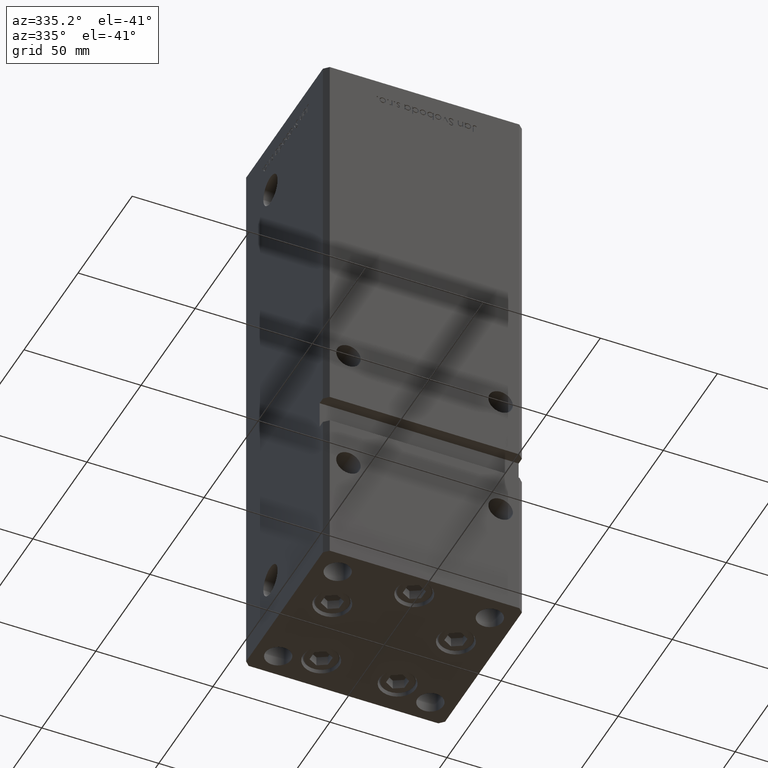
[diagram: clean part render]
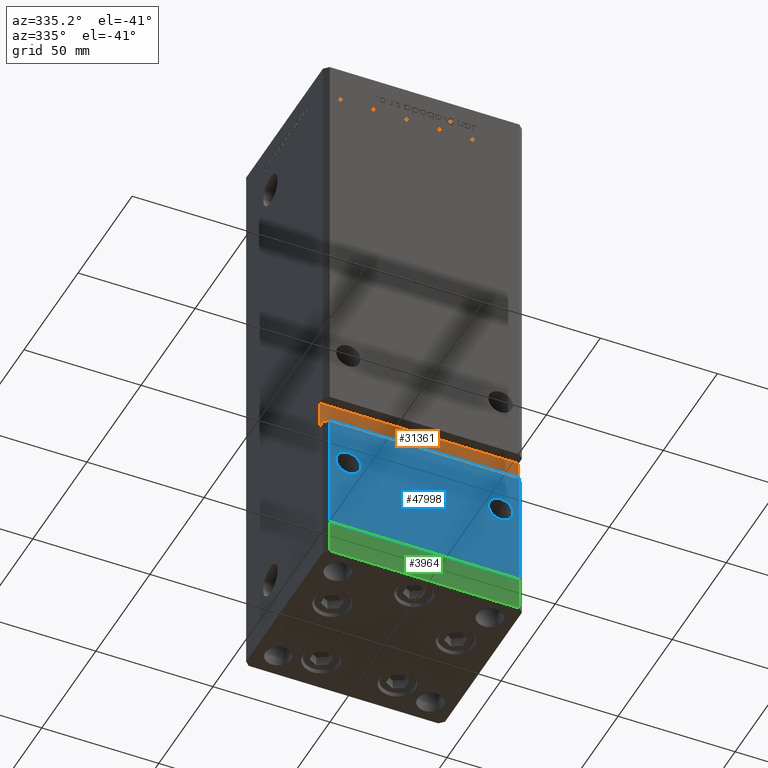
[diagram: same view with three faces highlighted in distinct colors, each labeled with its STEP entity id]
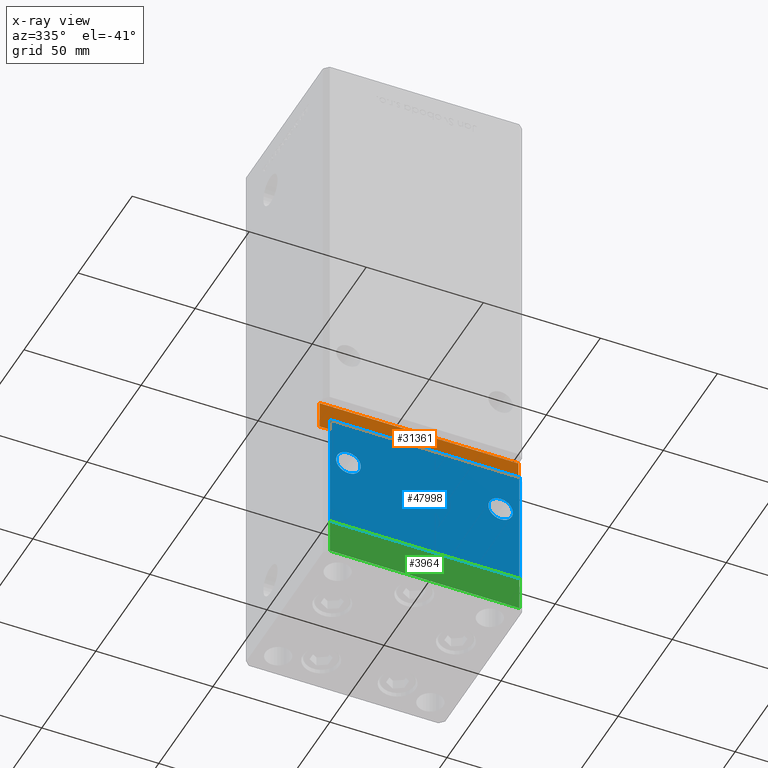
[diagram: x-ray of the same camera — body ghosted, the three highlighted faces saturated]
A machine part, auxiliary view with three faces highlighted in distinct colors.
The next image is the same camera in x-ray (body ghosted, the three faces saturated) — at least one of them is partly hidden behind the body in this view.
Their STEP definitions:

[orange] entity #31361 — the highlighted planar face has unit normal (0, -1, 0).
#280 = DIRECTION ( 'NONE',  ( -1.000000000000000000, -0.000000000000000000, -0.000000000000000000 ) ) ;
#643 = CARTESIAN_POINT ( 'NONE',  ( -42.49999999999997158, -32.50000000000000711, 64.00000000000002842 ) ) ;
#1408 = ORIENTED_EDGE ( 'NONE', *, *, #47503, .T. ) ;
#1414 = DIRECTION ( 'NONE',  ( 0.000000000000000000, -0.000000000000000000, -1.000000000000000000 ) ) ;
#1760 = CARTESIAN_POINT ( 'NONE',  ( -42.49999999999997158, -32.50000000000000711, 64.00000000000002842 ) ) ;
#4115 = VERTEX_POINT ( 'NONE', #24476 ) ;
#6539 = DIRECTION ( 'NONE',  ( 1.000000000000000000, 0.000000000000000000, 0.000000000000000000 ) ) ;
#10062 = EDGE_CURVE ( 'NONE', #52933, #4115, #28759, .T. ) ;
#12533 = VECTOR ( 'NONE', #6539, 1000.000000000000000 ) ;
#16120 = CARTESIAN_POINT ( 'NONE',  ( 42.49999999999999289, -32.50000000000000711, 64.00000000000002842 ) ) ;
#17529 = PLANE ( 'NONE',  #32927 ) ;
#18165 = VERTEX_POINT ( 'NONE', #20466 ) ;
#20108 = VERTEX_POINT ( 'NONE', #44892 ) ;
#20466 = CARTESIAN_POINT ( 'NONE',  ( -42.49999999999998579, -32.50000000000000711, 52.00000000000002132 ) ) ;
#21046 = LINE ( 'NONE', #643, #38861 ) ;
#22159 = DIRECTION ( 'NONE',  ( -1.734723475976805517E-15, 0.000000000000000000, -1.000000000000000000 ) ) ;
#22592 = ORIENTED_EDGE ( 'NONE', *, *, #29542, .T. ) ;
#24476 = CARTESIAN_POINT ( 'NONE',  ( 42.49999999999999289, -32.50000000000000711, 64.00000000000002842 ) ) ;
#28759 = LINE ( 'NONE', #16120, #50660 ) ;
#29372 = CARTESIAN_POINT ( 'NONE',  ( 0.000000000000000000, -32.50000000000000711, 0.000000000000000000 ) ) ;
#29542 = EDGE_CURVE ( 'NONE', #4115, #20108, #21046, .T. ) ;
#30707 = LINE ( 'NONE', #47920, #12533 ) ;
#31361 = ADVANCED_FACE ( 'NONE', ( #42262 ), #17529, .T. ) ;
#32927 = AXIS2_PLACEMENT_3D ( 'NONE', #29372, #50600, #1414 ) ;
#37528 = EDGE_CURVE ( 'NONE', #18165, #52933, #30707, .T. ) ;
#38846 = LINE ( 'NONE', #1760, #45292 ) ;
#38861 = VECTOR ( 'NONE', #280, 1000.000000000000000 ) ;
#41894 = ORIENTED_EDGE ( 'NONE', *, *, #10062, .T. ) ;
#42262 = FACE_OUTER_BOUND ( 'NONE', #48324, .T. ) ;
#44892 = CARTESIAN_POINT ( 'NONE',  ( -42.49999999999997158, -32.50000000000000711, 64.00000000000002842 ) ) ;
#45292 = VECTOR ( 'NONE', #22159, 1000.000000000000000 ) ;
#46468 = ORIENTED_EDGE ( 'NONE', *, *, #37528, .T. ) ;
#47503 = EDGE_CURVE ( 'NONE', #20108, #18165, #38846, .T. ) ;
#47920 = CARTESIAN_POINT ( 'NONE',  ( -42.49999999999998579, -32.50000000000000711, 52.00000000000002132 ) ) ;
#48323 = CARTESIAN_POINT ( 'NONE',  ( 42.49999999999998579, -32.50000000000000000, 52.00000000000002132 ) ) ;
#48324 = EDGE_LOOP ( 'NONE', ( #41894, #22592, #1408, #46468 ) ) ;
#50600 = DIRECTION ( 'NONE',  ( 0.000000000000000000, -1.000000000000000000, 0.000000000000000000 ) ) ;
#50660 = VECTOR ( 'NONE', #52969, 1000.000000000000000 ) ;
#52933 = VERTEX_POINT ( 'NONE', #48323 ) ;
#52969 = DIRECTION ( 'NONE',  ( -0.000000000000000000, -0.000000000000000000, 1.000000000000000000 ) ) ;

[blue] entity #47998 — the highlighted planar face has unit normal (0, 1, 0).
#294 = DIRECTION ( 'NONE',  ( 1.000000000000000000, 0.000000000000000000, 0.000000000000000000 ) ) ;
#385 = LINE ( 'NONE', #37460, #1583 ) ;
#823 = AXIS2_PLACEMENT_3D ( 'NONE', #16291, #28136, #41572 ) ;
#1506 = AXIS2_PLACEMENT_3D ( 'NONE', #21370, #29443, #33995 ) ;
#1583 = VECTOR ( 'NONE', #20251, 1000.000000000000000 ) ;
#2760 = FACE_BOUND ( 'NONE', #48376, .T. ) ;
#3035 = CARTESIAN_POINT ( 'NONE',  ( -40.49999999999998579, -37.50000000000000711, 218.5000000000000000 ) ) ;
#3520 = VERTEX_POINT ( 'NONE', #27320 ) ;
#3580 = DIRECTION ( 'NONE',  ( 0.000000000000000000, 1.000000000000000000, 0.000000000000000000 ) ) ;
#5051 = ORIENTED_EDGE ( 'NONE', *, *, #47386, .T. ) ;
#5578 = EDGE_CURVE ( 'NONE', #24733, #6236, #35916, .T. ) ;
#6236 = VERTEX_POINT ( 'NONE', #26536 ) ;
#6674 = CARTESIAN_POINT ( 'NONE',  ( 32.50000000000000000, -37.50000000000000711, 38.24999999999998579 ) ) ;
#6675 = EDGE_LOOP ( 'NONE', ( #17034, #22670, #35157, #23114 ) ) ;
#7464 = EDGE_CURVE ( 'NONE', #21424, #35253, #50574, .T. ) ;
#7849 = DIRECTION ( 'NONE',  ( 0.000000000000000000, 1.000000000000000000, 0.000000000000000000 ) ) ;
#9232 = CIRCLE ( 'NONE', #19501, 5.249999999999997335 ) ;
#10125 = LINE ( 'NONE', #31330, #32674 ) ;
#10160 = ORIENTED_EDGE ( 'NONE', *, *, #41699, .T. ) ;
#11706 = EDGE_LOOP ( 'NONE', ( #17486, #5051 ) ) ;
#13117 = VECTOR ( 'NONE', #20445, 1000.000000000000000 ) ;
#13698 = CARTESIAN_POINT ( 'NONE',  ( -32.50000000000000000, -37.50000000000000711, 38.24999999999999289 ) ) ;
#13783 = EDGE_CURVE ( 'NONE', #46427, #24529, #10125, .T. ) ;
#15746 = CARTESIAN_POINT ( 'NONE',  ( -40.49999999999998579, -37.50000000000000711, 52.00000000000002132 ) ) ;
#16291 = CARTESIAN_POINT ( 'NONE',  ( -32.50000000000000000, -37.50000000000000711, 32.99999999999999289 ) ) ;
#17034 = ORIENTED_EDGE ( 'NONE', *, *, #22770, .F. ) ;
#17486 = ORIENTED_EDGE ( 'NONE', *, *, #5578, .T. ) ;
#18846 = ORIENTED_EDGE ( 'NONE', *, *, #7464, .T. ) ;
#19501 = AXIS2_PLACEMENT_3D ( 'NONE', #26638, #43046, #38753 ) ;
#20203 = DIRECTION ( 'NONE',  ( 0.000000000000000000, 0.000000000000000000, 1.000000000000000000 ) ) ;
#20251 = DIRECTION ( 'NONE',  ( 1.000000000000000000, 0.000000000000000000, 0.000000000000000000 ) ) ;
#20445 = DIRECTION ( 'NONE',  ( -0.000000000000000000, -0.000000000000000000, -1.000000000000000000 ) ) ;
#20818 = EDGE_CURVE ( 'NONE', #24529, #35415, #24186, .T. ) ;
#21370 = CARTESIAN_POINT ( 'NONE',  ( 32.50000000000000000, -37.50000000000000711, 32.99999999999999289 ) ) ;
#21424 = VERTEX_POINT ( 'NONE', #36631 ) ;
#22670 = ORIENTED_EDGE ( 'NONE', *, *, #49208, .F. ) ;
#22770 = EDGE_CURVE ( 'NONE', #3520, #35415, #36579, .T. ) ;
#23114 = ORIENTED_EDGE ( 'NONE', *, *, #20818, .T. ) ;
#24186 = LINE ( 'NONE', #37101, #24192 ) ;
#24192 = VECTOR ( 'NONE', #294, 1000.000000000000000 ) ;
#24529 = VERTEX_POINT ( 'NONE', #47654 ) ;
#24733 = VERTEX_POINT ( 'NONE', #6674 ) ;
#26131 = FACE_OUTER_BOUND ( 'NONE', #6675, .T. ) ;
#26504 = DIRECTION ( 'NONE',  ( -0.000000000000000000, -0.000000000000000000, -1.000000000000000000 ) ) ;
#26536 = CARTESIAN_POINT ( 'NONE',  ( 32.50000000000000000, -37.50000000000000711, 27.75000000000000355 ) ) ;
#26638 = CARTESIAN_POINT ( 'NONE',  ( -32.50000000000000000, -37.50000000000000711, 32.99999999999999289 ) ) ;
#27320 = CARTESIAN_POINT ( 'NONE',  ( 40.49999999999998579, -37.50000000000000711, 52.00000000000002132 ) ) ;
#28136 = DIRECTION ( 'NONE',  ( 0.000000000000000000, 1.000000000000000000, 0.000000000000000000 ) ) ;
#28707 = CARTESIAN_POINT ( 'NONE',  ( 40.49999999999998579, -37.50000000000000711, 0.000000000000000000 ) ) ;
#29443 = DIRECTION ( 'NONE',  ( 0.000000000000000000, 1.000000000000000000, 0.000000000000000000 ) ) ;
#31330 = CARTESIAN_POINT ( 'NONE',  ( -40.49999999999998579, -37.50000000000000711, 218.5000000000000000 ) ) ;
#32674 = VECTOR ( 'NONE', #26504, 1000.000000000000000 ) ;
#33995 = DIRECTION ( 'NONE',  ( 0.000000000000000000, 0.000000000000000000, 1.000000000000000000 ) ) ;
#34095 = CIRCLE ( 'NONE', #1506, 5.249999999999991118 ) ;
#35157 = ORIENTED_EDGE ( 'NONE', *, *, #13783, .T. ) ;
#35253 = VERTEX_POINT ( 'NONE', #13698 ) ;
#35415 = VERTEX_POINT ( 'NONE', #28707 ) ;
#35807 = CARTESIAN_POINT ( 'NONE',  ( 32.50000000000000000, -37.50000000000000711, 32.99999999999999289 ) ) ;
#35916 = CIRCLE ( 'NONE', #41065, 5.249999999999991118 ) ;
#36068 = DIRECTION ( 'NONE',  ( 0.000000000000000000, -0.000000000000000000, 1.000000000000000000 ) ) ;
#36579 = LINE ( 'NONE', #48952, #13117 ) ;
#36631 = CARTESIAN_POINT ( 'NONE',  ( -32.50000000000000000, -37.50000000000000711, 27.74999999999999645 ) ) ;
#37101 = CARTESIAN_POINT ( 'NONE',  ( -40.49999999999998579, -37.50000000000000711, 0.000000000000000000 ) ) ;
#37460 = CARTESIAN_POINT ( 'NONE',  ( -42.49999999999998579, -37.50000000000000711, 52.00000000000002132 ) ) ;
#38753 = DIRECTION ( 'NONE',  ( 0.000000000000000000, 0.000000000000000000, 1.000000000000000000 ) ) ;
#41065 = AXIS2_PLACEMENT_3D ( 'NONE', #35807, #3580, #20203 ) ;
#41572 = DIRECTION ( 'NONE',  ( 0.000000000000000000, 0.000000000000000000, 1.000000000000000000 ) ) ;
#41699 = EDGE_CURVE ( 'NONE', #35253, #21424, #9232, .T. ) ;
#43046 = DIRECTION ( 'NONE',  ( 0.000000000000000000, 1.000000000000000000, 0.000000000000000000 ) ) ;
#43875 = PLANE ( 'NONE',  #49628 ) ;
#46427 = VERTEX_POINT ( 'NONE', #15746 ) ;
#46576 = FACE_BOUND ( 'NONE', #11706, .T. ) ;
#47386 = EDGE_CURVE ( 'NONE', #6236, #24733, #34095, .T. ) ;
#47654 = CARTESIAN_POINT ( 'NONE',  ( -40.49999999999998579, -37.50000000000000711, 0.000000000000000000 ) ) ;
#47998 = ADVANCED_FACE ( 'NONE', ( #2760, #46576, #26131 ), #43875, .F. ) ;
#48376 = EDGE_LOOP ( 'NONE', ( #10160, #18846 ) ) ;
#48952 = CARTESIAN_POINT ( 'NONE',  ( 40.49999999999998579, -37.50000000000000711, 218.5000000000000000 ) ) ;
#49208 = EDGE_CURVE ( 'NONE', #46427, #3520, #385, .T. ) ;
#49628 = AXIS2_PLACEMENT_3D ( 'NONE', #3035, #7849, #36068 ) ;
#50574 = CIRCLE ( 'NONE', #823, 5.249999999999997335 ) ;

[green] entity #3964 — the highlighted planar face has unit normal (0, -1, -0).
#323 = EDGE_CURVE ( 'NONE', #22299, #11959, #24246, .T. ) ;
#2582 = ORIENTED_EDGE ( 'NONE', *, *, #28472, .T. ) ;
#3964 = ADVANCED_FACE ( 'NONE', ( #23416 ), #36325, .T. ) ;
#5259 = CARTESIAN_POINT ( 'NONE',  ( -40.49999999999999289, -37.50000000000002132, 0.000000000000000000 ) ) ;
#6569 = LINE ( 'NONE', #6837, #44920 ) ;
#6594 = EDGE_LOOP ( 'NONE', ( #21593, #13512, #34020, #2582 ) ) ;
#6837 = CARTESIAN_POINT ( 'NONE',  ( -40.49999999999999289, -37.50000000000002132, -15.00000000000000000 ) ) ;
#10148 = VECTOR ( 'NONE', #17505, 1000.000000000000000 ) ;
#11959 = VERTEX_POINT ( 'NONE', #34389 ) ;
#13512 = ORIENTED_EDGE ( 'NONE', *, *, #33167, .F. ) ;
#16269 = CARTESIAN_POINT ( 'NONE',  ( -40.49999999999999289, -37.50000000000002132, -15.00000000000000000 ) ) ;
#17505 = DIRECTION ( 'NONE',  ( 1.000000000000000000, 1.713307136767217096E-16, 0.000000000000000000 ) ) ;
#20405 = AXIS2_PLACEMENT_3D ( 'NONE', #48443, #27995, #43596 ) ;
#21593 = ORIENTED_EDGE ( 'NONE', *, *, #323, .F. ) ;
#22299 = VERTEX_POINT ( 'NONE', #5259 ) ;
#23416 = FACE_OUTER_BOUND ( 'NONE', #6594, .T. ) ;
#23865 = CARTESIAN_POINT ( 'NONE',  ( 40.50000000000000000, -37.50000000000000711, -15.00000000000000000 ) ) ;
#24246 = LINE ( 'NONE', #37940, #10148 ) ;
#24267 = CARTESIAN_POINT ( 'NONE',  ( 40.50000000000000000, -37.50000000000000711, -15.00000000000000000 ) ) ;
#26974 = DIRECTION ( 'NONE',  ( 1.000000000000000000, 1.713307136767217096E-16, 0.000000000000000000 ) ) ;
#27995 = DIRECTION ( 'NONE',  ( 1.713307136767217096E-16, -1.000000000000000000, 0.000000000000000000 ) ) ;
#28472 = EDGE_CURVE ( 'NONE', #45022, #11959, #36118, .T. ) ;
#30366 = EDGE_CURVE ( 'NONE', #50270, #45022, #6569, .T. ) ;
#32660 = DIRECTION ( 'NONE',  ( 0.000000000000000000, 0.000000000000000000, 1.000000000000000000 ) ) ;
#33167 = EDGE_CURVE ( 'NONE', #50270, #22299, #36984, .T. ) ;
#34020 = ORIENTED_EDGE ( 'NONE', *, *, #30366, .T. ) ;
#34389 = CARTESIAN_POINT ( 'NONE',  ( 40.50000000000000000, -37.50000000000000711, 0.000000000000000000 ) ) ;
#36118 = LINE ( 'NONE', #24267, #36242 ) ;
#36242 = VECTOR ( 'NONE', #44716, 1000.000000000000000 ) ;
#36325 = PLANE ( 'NONE',  #20405 ) ;
#36984 = LINE ( 'NONE', #16269, #44161 ) ;
#37940 = CARTESIAN_POINT ( 'NONE',  ( -40.49999999999999289, -37.50000000000002132, 0.000000000000000000 ) ) ;
#39314 = CARTESIAN_POINT ( 'NONE',  ( -40.49999999999999289, -37.50000000000002132, -15.00000000000000000 ) ) ;
#43596 = DIRECTION ( 'NONE',  ( 1.000000000000000000, 1.713307136767217096E-16, 0.000000000000000000 ) ) ;
#44161 = VECTOR ( 'NONE', #32660, 1000.000000000000000 ) ;
#44716 = DIRECTION ( 'NONE',  ( 0.000000000000000000, 0.000000000000000000, 1.000000000000000000 ) ) ;
#44920 = VECTOR ( 'NONE', #26974, 1000.000000000000000 ) ;
#45022 = VERTEX_POINT ( 'NONE', #23865 ) ;
#48443 = CARTESIAN_POINT ( 'NONE',  ( -40.49999999999999289, -37.50000000000002132, -15.00000000000000000 ) ) ;
#50270 = VERTEX_POINT ( 'NONE', #39314 ) ;